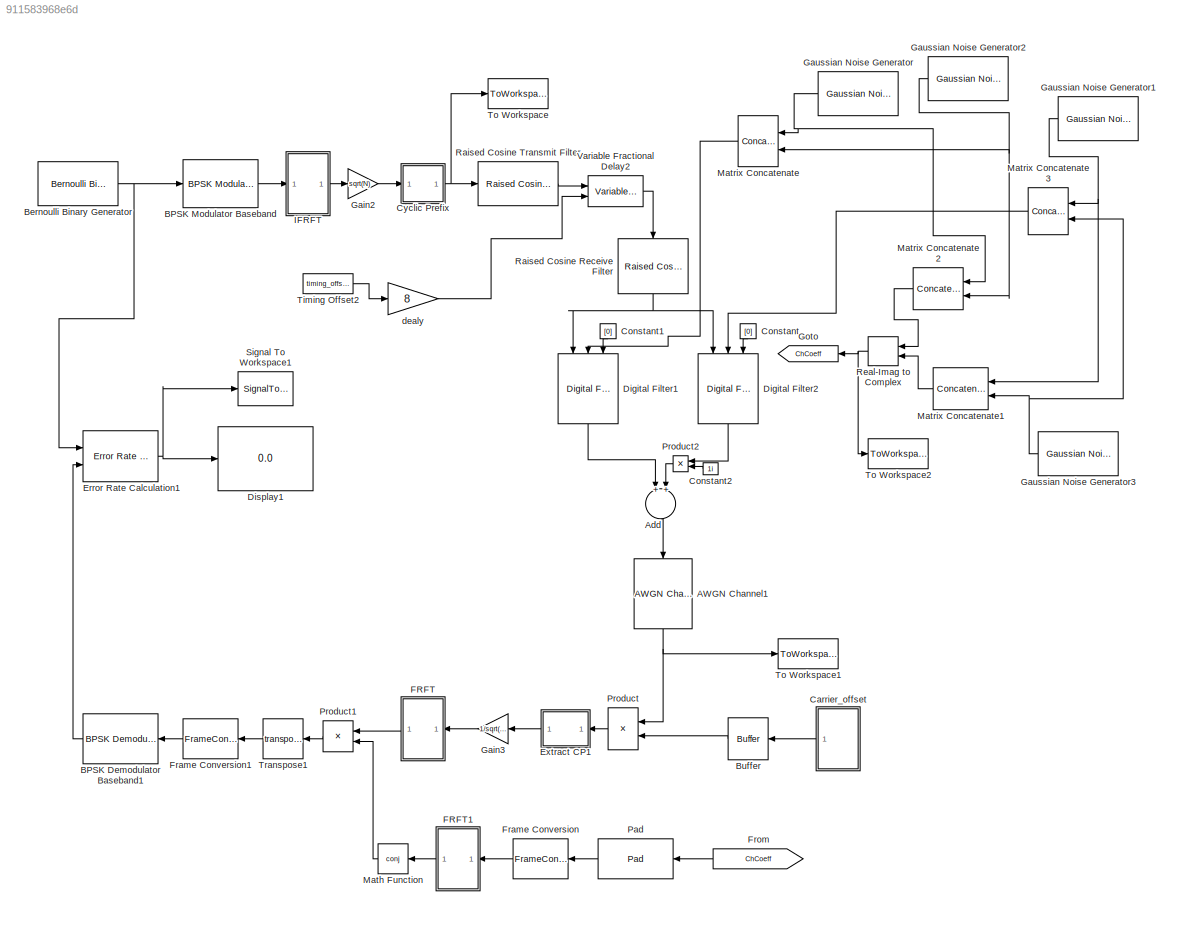
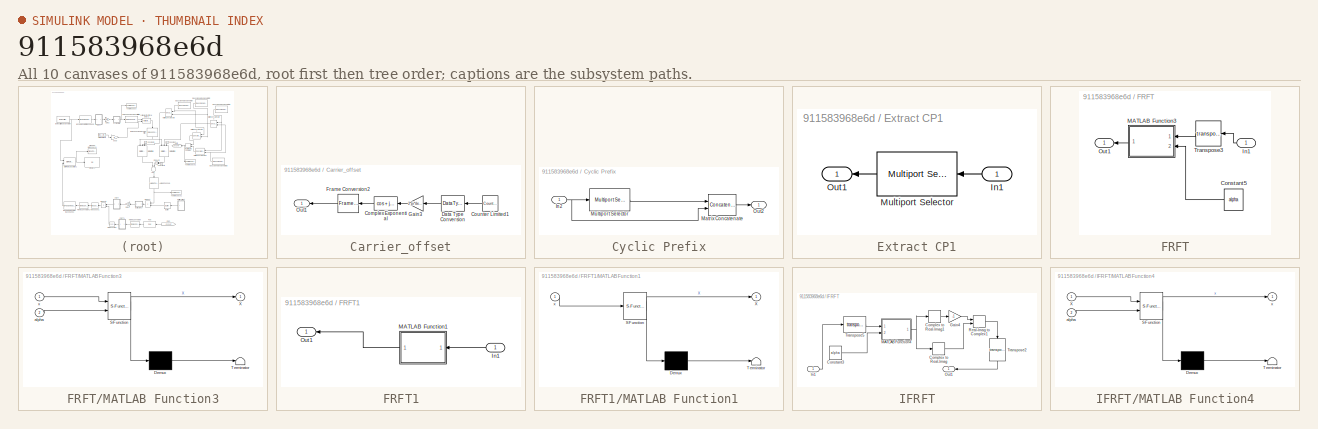
[diagram: thumbnail index - all 10 canvases of the model, root first then tree order]
MODEL slx_911583968e6d
KIND model
CONFIG AbsTol = auto
CONFIG FixedStep = auto
CONFIG MaxStep = auto
CONFIG MinStep = auto
CONFIG RelTol = 1e-3
CONFIG SampleTimeConstraint = Unconstrained
CONFIG Solver = VariableStepDiscrete
CONFIG SolverMode = Auto
CONFIG SolverName = VariableStepDiscrete
CONFIG StartTime = 0.0
CONFIG StopTime = inf
BLOCK [Reference] AWGN Channel1  REF=commchan3/AWGN
Channel
  EbNodB = 50
  EsNodB = 10
  InputProcessing = Columns as channels (frame based)
  Ports = [1, 1]
  Ps = 1
  SNRdB = SNR
  SourceBlock = commchan3/AWGN\nChannel
  SourceType = AWGN Channel
  Tsym = 1
  UserDataPersistent = on
  bitsPerSym = 1
  noiseMode = Signal to noise ratio  (SNR)
  seed = 67
  variance = 1
BLOCK [Sum] Add
  InputSameDT = off
  OutDataTypeStr = Inherit: Inherit via internal rule
  Ports = [2, 1]
  SaturateOnIntegerOverflow = off
BLOCK [Reference] BPSK Demodulator Baseband1  REF=commdigbbndpm3/BPSK
Demodulator
Baseband
  DecType = Hard decision
  Ph = 0
  Ports = [1, 1]
  SourceBlock = commdigbbndpm3/BPSK\nDemodulator\nBaseband
  SourceType = BPSK Demodulator Baseband
  VarSource = Dialog
  Variance = 1
  derotateFactorDTMode = Same word length as input
  derotateFactorWordLen = 16
  outDtype = Inherit via internal rule
BLOCK [Reference] BPSK Modulator Baseband  REF=commdigbbndpm3/BPSK
Modulator
Baseband
  Ph = 0
  Ports = [1, 1]
  SourceBlock = commdigbbndpm3/BPSK\nModulator\nBaseband
  SourceType = BPSK Modulator Baseband
  outDtype = double
  outFracLen = 15
  outFracLenMode = Best precision
  outUDDataType = sfix(16)
  outWordLen = 16
BLOCK [Reference] Bernoulli Binary Generator  REF=commrandsrc2/Bernoulli Binary
Generator
  P = .5
  Ports = [0, 1]
  SourceBlock = commrandsrc2/Bernoulli Binary\nGenerator
  SourceType = Bernoulli Binary Generator
  Ts = Ts/N
  frameBased = on
  orient = off
  outDataType = double
  sampPerFrame = N
  seed = 1361
BLOCK [Buffer] Buffer
  N = N+L
  TreatMby1Signals = One channel
BLOCK [SubSystem] Carrier_offset
  Ports = [0, 1]
  RequestExecContextInheritance = off
BLOCK [Trigonometry] Carrier_offset/Complex Exponential
  Operator = cos + jsin
  Ports = [1, 1]
BLOCK [Reference] Carrier_offset/Counter Limited1  REF=simulink/Sources/Counter
Limited
  Ports = [0, 1]
  SourceBlock = simulink/Sources/Counter\nLimited
  SourceType = Counter Limited
  tsamp = Ts/(N+L)
  uplimit = N+L
BLOCK [DataTypeConversion] Carrier_offset/Data Type Conversion
  RndMeth = Floor
  SaturateOnIntegerOverflow = off
BLOCK [FrameConversion] Carrier_offset/Frame Conversion2
  Ports = [1, 1]
BLOCK [Gain] Carrier_offset/Gain3
  Gain = 2*pi*del_f/N
  OutDataTypeStr = Inherit: Inherit via internal rule
  ParamDataTypeStr = Inherit: Inherit via internal rule
  SaturateOnIntegerOverflow = off
BLOCK [Outport] Carrier_offset/Out1
  IconDisplay = Port number
BLOCK [Constant] Constant
  FramePeriod = 1
  SamplingMode = Frame based
  Value = [0]
  VectorParams1D = off
BLOCK [Constant] Constant1
  FramePeriod = 1
  SamplingMode = Frame based
  Value = [0]
  VectorParams1D = off
BLOCK [Constant] Constant2
  Value = 1i
BLOCK [SubSystem] Cyclic Prefix
  Ports = [1, 1]
  RequestExecContextInheritance = off
BLOCK [Inport] Cyclic Prefix/In2
  IconDisplay = Port number
BLOCK [Concatenate] Cyclic Prefix/Matrix Concatenate
  Mode = Multidimensional array
  Ports = [2, 1]
BLOCK [Reference] Cyclic Prefix/Multiport Selector  REF=dspindex/Multiport
Selector
  Ports = [1, 1]
  SourceBlock = dspindex/Multiport\nSelector
  SourceType = Multiport Selector
  idxCellArray = { N-L+1:N }
  idxErrMode = Clip Index
  rowsOrCols = Rows
BLOCK [Outport] Cyclic Prefix/Out2
  IconDisplay = Port number
BLOCK [Reference] Digital Filter1  REF=dspobslib/Digital Filter
  AllPoleFiltStruct = Direct form
  BiQuadCoeffs = [1 0.3 0.4 1 0.1 0.2]
  CoeffSource = Input port(s)
  DenCoeffs = [1 1]
  FIRFiltStruct = Direct form
  FiltPerSampPopup = One filter per frame
  FilterSource = Input port(s)
  IC = 0
  ICden = 0
  ICnum = 0
  IIRFiltStruct = Direct form II transposed
  InputProcessing = Columns as channels (frame based)
  LatticeCoeffs = [0.2 0.4]
  LockScale = off
  NumCoeffs = randn
  Ports = [3, 1]
  ScaleValues = 1
  SourceBlock = dspobslib/Digital Filter
  SourceType = Digital Filter
  TypePopup = IIR (poles & zeros)
  UserDataPersistent = on
  accumFracLength = 30
  accumMode = Same as product output
  accumWordLength = 32
  additionalParams = off
  allowOverrides = on
  denIgnore = on
  dfiltObjectName = dfilt.dffir([1 2 1])
  firstCoeffFracLength = 15
  firstCoeffMode = Same word length as input
  firstCoeffWordLength = 16
  memoryFracLength = 15
  memoryMode = Same as accumulator
  memoryWordLength = 16
  multiplicandFracLength = 30
  multiplicandMode = Same as output
  multiplicandWordLength = 32
  outputFracLength = 15
  outputMode = Same as accumulator
  outputWordLength = 16
  overflowMode = off
  prodOutputFracLength = 30
  prodOutputMode = Same as input
  prodOutputWordLength = 32
  roundingMode = Floor
  scaleValueFracLength = 14
  secondCoeffFracLength = 15
  secondCoeffMode = Same as numerator
  secondCoeffWordLength = 16
  showAcc = off
  showCoeff = off
  showMem = off
  showMpy = off
  showOut = off
  stageIOMode = Same as input
  stageIOWordLength = 16
  stageInFracLength = 15
  stageOutFracLength = 15
  tapSumFracLength = 30
  tapSumMode = Same as input
  tapSumWordLength = 32
  thirdCoeffFracLength = 15
  thirdCoeffMode = Same as input
  thirdCoeffWordLength = 16
BLOCK [Reference] Digital Filter2  REF=dspobslib/Digital Filter
  AllPoleFiltStruct = Direct form
  BiQuadCoeffs = [1 0.3 0.4 1 0.1 0.2]
  CoeffSource = Input port(s)
  DenCoeffs = [1 1]
  FIRFiltStruct = Direct form
  FiltPerSampPopup = One filter per frame
  FilterSource = Input port(s)
  IC = 0
  ICden = 0
  ICnum = 0
  IIRFiltStruct = Direct form II transposed
  InputProcessing = Columns as channels (frame based)
  LatticeCoeffs = [0.2 0.4]
  LockScale = off
  NumCoeffs = randn
  Ports = [3, 1]
  ScaleValues = 1
  SourceBlock = dspobslib/Digital Filter
  SourceType = Digital Filter
  TypePopup = IIR (poles & zeros)
  UserDataPersistent = on
  accumFracLength = 30
  accumMode = Same as product output
  accumWordLength = 32
  additionalParams = off
  allowOverrides = on
  denIgnore = on
  dfiltObjectName = dfilt.dffir([1 2 1])
  firstCoeffFracLength = 15
  firstCoeffMode = Same word length as input
  firstCoeffWordLength = 16
  memoryFracLength = 15
  memoryMode = Same as accumulator
  memoryWordLength = 16
  multiplicandFracLength = 30
  multiplicandMode = Same as output
  multiplicandWordLength = 32
  outputFracLength = 15
  outputMode = Same as accumulator
  outputWordLength = 16
  overflowMode = off
  prodOutputFracLength = 30
  prodOutputMode = Same as input
  prodOutputWordLength = 32
  roundingMode = Floor
  scaleValueFracLength = 14
  secondCoeffFracLength = 15
  secondCoeffMode = Same as numerator
  secondCoeffWordLength = 16
  showAcc = off
  showCoeff = off
  showMem = off
  showMpy = off
  showOut = off
  stageIOMode = Same as input
  stageIOWordLength = 16
  stageInFracLength = 15
  stageOutFracLength = 15
  tapSumFracLength = 30
  tapSumMode = Same as input
  tapSumWordLength = 32
  thirdCoeffFracLength = 15
  thirdCoeffMode = Same as input
  thirdCoeffWordLength = 16
BLOCK [Display] Display1
  Decimation = 1
  Ports = [1]
BLOCK [Reference] Error Rate Calculation1  REF=commsink2/Error Rate
Calculation
  N = N
  PMode = Port
  Ports = [2, 1]
  RsMode2 = off
  SourceBlock = commsink2/Error Rate\nCalculation
  SourceType = Error Rate Calculation
  WsName = ErrorVec
  cp_mode = Entire frame
  maxBits = maxNumBits
  numErr = maxNumErrs
  st_delay = N
  stop = on
  subframe = []
BLOCK [SubSystem] Extract CP1
  Ports = [1, 1]
  RequestExecContextInheritance = off
BLOCK [Inport] Extract CP1/In1
  IconDisplay = Port number
BLOCK [Reference] Extract CP1/Multiport Selector  REF=dspindex/Multiport
Selector
  Ports = [1, 1]
  SourceBlock = dspindex/Multiport\nSelector
  SourceType = Multiport Selector
  idxCellArray = { (L+1):(N+L) }
  idxErrMode = Clip Index
  rowsOrCols = Rows
BLOCK [Outport] Extract CP1/Out1
  IconDisplay = Port number
BLOCK [SubSystem] FRFT
  Ports = [1, 1]
  RequestExecContextInheritance = off
BLOCK [Constant] FRFT/Constant5
  SamplingMode = Frame based
  Value = alpha
  VectorParams1D = off
BLOCK [Inport] FRFT/In1
  IconDisplay = Port number
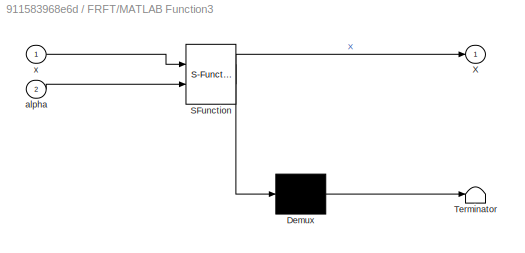
BLOCK [SubSystem] FRFT/MATLAB Function3
  ErrorFcn = Stateflow.Translate.translate
  PermitHierarchicalResolution = ExplicitOnly
  Ports = [2, 1]
  RequestExecContextInheritance = off
  SFBlockType = MATLAB Function
  TreatAsAtomicUnit = on
BLOCK [Demux] FRFT/MATLAB Function3/ Demux 
  Outputs = 1
  Ports = [1, 1]
BLOCK [S-Function] FRFT/MATLAB Function3/ SFunction 
  EnableBusSupport = on
  FunctionName = sf_sfun
  PortCounts = [2 2]
  Ports = [2, 2]
  Tag = Stateflow S-Function BPSK_FS_CFO_STO_finial 3
BLOCK [Terminator] FRFT/MATLAB Function3/ Terminator 
BLOCK [Outport] FRFT/MATLAB Function3/X
  IconDisplay = Port number
BLOCK [Inport] FRFT/MATLAB Function3/alpha
  IconDisplay = Port number
  Port = 2
BLOCK [Inport] FRFT/MATLAB Function3/x
  IconDisplay = Port number
BLOCK [Outport] FRFT/Out1
  IconDisplay = Port number
BLOCK [Math] FRFT/Transpose3
  Operator = transpose
  Ports = [1, 1]
BLOCK [SubSystem] FRFT1
  Ports = [1, 1]
  RequestExecContextInheritance = off
BLOCK [Inport] FRFT1/In1
  IconDisplay = Port number
BLOCK [SubSystem] FRFT1/MATLAB Function1
  ErrorFcn = Stateflow.Translate.translate
  PermitHierarchicalResolution = ExplicitOnly
  Ports = [1, 1]
  RequestExecContextInheritance = off
  SFBlockType = MATLAB Function
  TreatAsAtomicUnit = on
BLOCK [Demux] FRFT1/MATLAB Function1/ Demux 
  Outputs = 1
  Ports = [1, 1]
BLOCK [S-Function] FRFT1/MATLAB Function1/ SFunction 
  EnableBusSupport = on
  FunctionName = sf_sfun
  PortCounts = [1 2]
  Ports = [1, 2]
  Tag = Stateflow S-Function BPSK_FS_CFO_STO_finial 1
BLOCK [Terminator] FRFT1/MATLAB Function1/ Terminator 
BLOCK [Outport] FRFT1/MATLAB Function1/X
  IconDisplay = Port number
BLOCK [Inport] FRFT1/MATLAB Function1/x
  IconDisplay = Port number
BLOCK [Outport] FRFT1/Out1
  IconDisplay = Port number
BLOCK [FrameConversion] Frame Conversion
  OutFrame = Sample-based
  Ports = [1, 1]
BLOCK [FrameConversion] Frame Conversion1
  Ports = [1, 1]
BLOCK [From] From
  GotoTag = ChCoeff
BLOCK [Gain] Gain2
  Gain = sqrt(N)
  OutDataTypeStr = double
  ParamDataTypeStr = Inherit: Inherit via internal rule
  SaturateOnIntegerOverflow = off
BLOCK [Gain] Gain3
  Gain = 1/sqrt(N)
  OutDataTypeStr = Inherit: Inherit via internal rule
  ParamDataTypeStr = Inherit: Inherit via internal rule
  SaturateOnIntegerOverflow = off
BLOCK [Reference] Gaussian Noise Generator  REF=commnoisgen2/Gaussian Noise
Generator
  Ports = [0, 1]
  SourceBlock = commnoisgen2/Gaussian Noise\nGenerator
  SourceType = Gaussian Noise Generator
  Ts = 1
  d = 1/4
  frameBased = on
  m = 0
  orient = off
  outDataType = double
  s = 1772
  sampPerFrame = 1
BLOCK [Reference] Gaussian Noise Generator1  REF=commnoisgen2/Gaussian Noise
Generator
  Ports = [0, 1]
  SourceBlock = commnoisgen2/Gaussian Noise\nGenerator
  SourceType = Gaussian Noise Generator
  Ts = 1
  d = 1/4
  frameBased = on
  m = 0
  orient = off
  outDataType = double
  s = 12313
  sampPerFrame = 1
BLOCK [Reference] Gaussian Noise Generator2  REF=commnoisgen2/Gaussian Noise
Generator
  Ports = [0, 1]
  SourceBlock = commnoisgen2/Gaussian Noise\nGenerator
  SourceType = Gaussian Noise Generator
  Ts = 1
  d = 1/4
  frameBased = on
  m = 0
  orient = off
  outDataType = double
  s = 14123
  sampPerFrame = 1
BLOCK [Reference] Gaussian Noise Generator3  REF=commnoisgen2/Gaussian Noise
Generator
  Ports = [0, 1]
  SourceBlock = commnoisgen2/Gaussian Noise\nGenerator
  SourceType = Gaussian Noise Generator
  Ts = 1
  d = 1/4
  frameBased = on
  m = 0
  orient = off
  outDataType = double
  s = 6632
  sampPerFrame = 1
BLOCK [Goto] Goto
  GotoTag = ChCoeff
BLOCK [SubSystem] IFRFT
  Ports = [1, 1]
  RequestExecContextInheritance = off
BLOCK [ComplexToRealImag] IFRFT/Complex to Real-Imag
  Output = Real
  Ports = [1, 1]
BLOCK [ComplexToRealImag] IFRFT/Complex to Real-Imag1
  Output = Imag
  Ports = [1, 1]
BLOCK [Constant] IFRFT/Constant3
  SamplingMode = Frame based
  Value = alpha
  VectorParams1D = off
BLOCK [Gain] IFRFT/Gain4
  Gain = -1
  OutDataTypeStr = Inherit: Inherit via internal rule
  ParamDataTypeStr = Inherit: Inherit via internal rule
  SaturateOnIntegerOverflow = off
BLOCK [Inport] IFRFT/In1
  IconDisplay = Port number
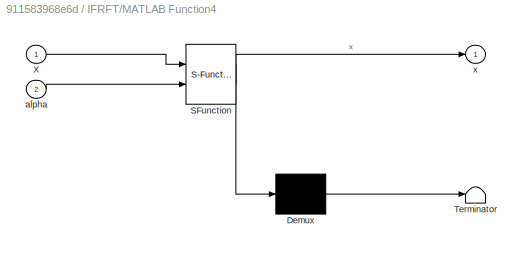
BLOCK [SubSystem] IFRFT/MATLAB Function4
  ErrorFcn = Stateflow.Translate.translate
  PermitHierarchicalResolution = ExplicitOnly
  Ports = [2, 1]
  RequestExecContextInheritance = off
  SFBlockType = MATLAB Function
  TreatAsAtomicUnit = on
BLOCK [Demux] IFRFT/MATLAB Function4/ Demux 
  Outputs = 1
  Ports = [1, 1]
BLOCK [S-Function] IFRFT/MATLAB Function4/ SFunction 
  EnableBusSupport = on
  FunctionName = sf_sfun
  PortCounts = [2 2]
  Ports = [2, 2]
  Tag = Stateflow S-Function BPSK_FS_CFO_STO_finial 4
BLOCK [Terminator] IFRFT/MATLAB Function4/ Terminator 
BLOCK [Inport] IFRFT/MATLAB Function4/X
  IconDisplay = Port number
BLOCK [Inport] IFRFT/MATLAB Function4/alpha
  IconDisplay = Port number
  Port = 2
BLOCK [Outport] IFRFT/MATLAB Function4/x
  IconDisplay = Port number
BLOCK [Outport] IFRFT/Out1
  IconDisplay = Port number
BLOCK [RealImagToComplex] IFRFT/Real-Imag to Complex1
  Ports = [2, 1]
BLOCK [Math] IFRFT/Transpose2
  Operator = transpose
  Ports = [1, 1]
BLOCK [Math] IFRFT/Transpose5
  Operator = transpose
  Ports = [1, 1]
BLOCK [Math] Math Function
  Operator = conj
  Ports = [1, 1]
BLOCK [Concatenate] Matrix Concatenate
  Mode = Multidimensional array
  Ports = [2, 1]
BLOCK [Concatenate] Matrix Concatenate1
  ConcatenateDimension = 2
  Mode = Multidimensional array
  Ports = [2, 1]
BLOCK [Concatenate] Matrix Concatenate2
  ConcatenateDimension = 2
  Mode = Multidimensional array
  Ports = [2, 1]
BLOCK [Concatenate] Matrix Concatenate3
  Mode = Multidimensional array
  Ports = [2, 1]
BLOCK [Reference] Pad  REF=dspsigops/Pad
  LockScale = off
  Ports = [1, 1]
  SourceBlock = dspsigops/Pad
  SourceType = Pad
  accumFracLength = 0
  accumMode = Same as input
  accumWordLength = 0
  dimsToPad = 1
  isVarDimsMode = off
  numOutCols = N
  numOutRows = 8
  outSize = 1
  outSizeMode = User-specified
  outputFracLength = 0
  outputMode = Same as input
  outputWordLength = 0
  overflowMode = off
  padAlong = Rows
  padBeginning = 0
  padEnd = 0
  padNumOutColsSpecMethod = User-specified
  padNumOutRowsSpecMethod = User-specified
  padSigAt = End
  padVal = 0
  roundingMode = Floor
  spec = Output size
  truncOrWrapMode = Truncate
  trunc_flag = None
  valSrc = Specify via dialog
  wrap_flag = None
BLOCK [Product] Product
  InputSameDT = off
  OutDataTypeStr = Inherit: Inherit via internal rule
  Ports = [2, 1]
  RndMeth = Floor
  SaturateOnIntegerOverflow = off
BLOCK [Product] Product1
  InputSameDT = off
  OutDataTypeStr = Inherit: Inherit via internal rule
  Ports = [2, 1]
  RndMeth = Floor
  SaturateOnIntegerOverflow = off
BLOCK [Product] Product2
  InputSameDT = off
  OutDataTypeStr = Inherit: Inherit via internal rule
  Ports = [2, 1]
  RndMeth = Floor
  SaturateOnIntegerOverflow = off
BLOCK [Reference] Raised Cosine Receive Filter  REF=commfilt2/Raised Cosine
Receive Filter
  D = (N+L)/2
  InputProcessing = Columns as channels (frame based)
  LockScale = off
  N = 10
  Ports = [1, 1]
  R = 0.5
  SourceBlock = commfilt2/Raised Cosine\nReceive Filter
  SourceType = Raised Cosine Receive Filter
  UserDataPersistent = on
  accumFracLength = 30
  accumMode = Same as product output
  accumWordLength = 32
  checkCoeff = on
  checkGain = Normalized
  coeffFracLength = 15
  coeffMode = Same word length as input
  coeffWordLength = 16
  currentFiltSpan = N+L
  downFactor = 10
  downOffset = 0
  filtSpan = N+L
  filtType = Square root
  filterGain = 1
  framing = Enforce single-rate processing
  launchFVT = on
  outputFracLength = 15
  outputMode = Same as accumulator
  outputWordLength = 16
  overflowMode = off
  prodOutputFracLength = 30
  prodOutputMode = Same as input
  prodOutputWordLength = 32
  rateMode = Downsampling
  roundingMode = Floor
  sampMode = Mute
  saveAsFlag = 0
  variableName = rcRxFilt
BLOCK [Reference] Raised Cosine Transmit Filter  REF=commfilt2/Raised Cosine
Transmit Filter
  D = (N+L)/2
  InputProcessing = Columns as channels (frame based)
  LockScale = off
  N = 10
  Ports = [1, 1]
  R = 0.5
  SourceBlock = commfilt2/Raised Cosine\nTransmit Filter
  SourceType = Raised Cosine Transmit Filter
  UserDataPersistent = on
  accumFracLength = 30
  accumMode = Inherit via internal rule
  accumWordLength = 32
  checkCoeff = on
  checkGain = Normalized
  coeffFracLength = 15
  coeffMode = Same word length as input
  coeffWordLength = 16
  currentFiltSpan = N+L
  filtSpan = N+L
  filtType = Square root
  filterGain = 1
  framing = Enforce single-rate processing
  launchFVT = on
  outputFracLength = 15
  outputMode = Same as accumulator
  outputWordLength = 16
  overflowMode = off
  prodOutputFracLength = 30
  prodOutputMode = Inherit via internal rule
  prodOutputWordLength = 32
  roundingMode = Floor
  sampMode = Mute
  saveAsFlag = 0
  variableName = rcTxFilt
BLOCK [RealImagToComplex] Real-Imag to Complex
  Ports = [2, 1]
BLOCK [SignalToWorkspace] Signal To Workspace1
  CopyFcn = dspblkcopystw(gcbh);
  MaxDataPoints = 1
  Ports = [1]
  VariableName = SER1
BLOCK [Constant] Timing Offset2
  Value = timing_offset
BLOCK [ToWorkspace] To Workspace
  FixptAsFi = on
  MaxDataPoints = inf
  Ports = [1]
  SampleTime = -1
  Save2DSignal = 3-D array (concatenate along third dimension)
  SaveFormat = Timeseries
  VariableName = simout
BLOCK [ToWorkspace] To Workspace1
  FixptAsFi = on
  MaxDataPoints = inf
  Ports = [1]
  SampleTime = -1
  Save2DSignal = 3-D array (concatenate along third dimension)
  SaveFormat = Timeseries
  VariableName = simout1
BLOCK [ToWorkspace] To Workspace2
  FixptAsFi = on
  MaxDataPoints = inf
  Ports = [1]
  SampleTime = -1
  Save2DSignal = 3-D array (concatenate along third dimension)
  SaveFormat = Timeseries
  VariableName = simout2
BLOCK [Math] Transpose1
  Operator = transpose
  Ports = [1, 1]
BLOCK [Reference] Variable Fractional Delay2  REF=dspsigops/Variable
Fractional Delay
  FarrowL = 4
  InputProcessing = Columns as channels (frame based)
  L = 4
  LockScale = off
  Ports = [2, 1]
  R = 10
  SourceBlock = dspsigops/Variable\nFractional Delay
  SourceType = Variable Fractional Delay
  UserDataPersistent = on
  accumFracLength = 10
  accumMode = Same as product output
  accumWordLength = 32
  alpha = 1
  dmax = 10
  fallbackFIR = Clip to the minimum value necessary for centered kernel
  fallbackFarrow = Clip to the minimum value necessary for centered kernel
  firstCoeffFracLength = 0
  firstCoeffMode = Same word length as input
  firstCoeffWordLength = 32
  ic = 0
  interProdFracLength = 10
  interProdMode = Same as first input
  interProdWordLength = 32
  memoryFracLength = 10
  memoryMode = Same as first input
  memoryWordLength = 32
  mode = OBSOLETE
  modeActive = Linear
  noDFT = off
  outputFracLength = 10
  outputMode = Same as accumulator
  outputWordLength = 32
  overflowMode = off
  prodOutputFracLength = 10
  prodOutputMode = Same as first input
  prodOutputWordLength = 32
  roundingMode = Zero
  secondCoeffFracLength = 10
  secondCoeffMode = Same as first input
  secondCoeffWordLength = 32
BLOCK [Gain] dealy 
  Gain = 8
NET AWGN Channel1:1 -> Product:1, To Workspace1:1
LINE Add:1 -> AWGN Channel1:1
LINE BPSK Demodulator Baseband1:1 -> Error Rate Calculation1:2
LINE BPSK Modulator Baseband:1 -> IFRFT:1
NET Bernoulli Binary Generator:1 -> BPSK Modulator Baseband:1, Error Rate Calculation1:1
LINE Buffer:1 -> Product:2
LINE Carrier_offset/Complex Exponential:1 -> Carrier_offset/Frame Conversion2:1
LINE Carrier_offset/Counter Limited1:1 -> Carrier_offset/Data Type Conversion:1
LINE Carrier_offset/Data Type Conversion:1 -> Carrier_offset/Gain3:1
LINE Carrier_offset/Frame Conversion2:1 -> Carrier_offset/Out1:1
LINE Carrier_offset/Gain3:1 -> Carrier_offset/Complex Exponential:1
LINE Carrier_offset:1 -> Buffer:1
LINE Constant1:1 -> Digital Filter1:3
LINE Constant2:1 -> Product2:2
LINE Constant:1 -> Digital Filter2:3
NET Cyclic Prefix/In2:1 -> Cyclic Prefix/Matrix Concatenate:2, Cyclic Prefix/Multiport Selector:1
LINE Cyclic Prefix/Matrix Concatenate:1 -> Cyclic Prefix/Out2:1
LINE Cyclic Prefix/Multiport Selector:1 -> Cyclic Prefix/Matrix Concatenate:1
NET Cyclic Prefix:1 -> Raised Cosine Transmit Filter:1, To Workspace:1
LINE Digital Filter1:1 -> Add:1
LINE Digital Filter2:1 -> Product2:1
NET Error Rate Calculation1:1 -> Display1:1, Signal To Workspace1:1
LINE Extract CP1/In1:1 -> Extract CP1/Multiport Selector:1
LINE Extract CP1/Multiport Selector:1 -> Extract CP1/Out1:1
LINE Extract CP1:1 -> Gain3:1
LINE FRFT/Constant5:1 -> FRFT/MATLAB Function3:2
LINE FRFT/In1:1 -> FRFT/Transpose3:1
LINE FRFT/MATLAB Function3:1 -> FRFT/Out1:1
LINE FRFT/Transpose3:1 -> FRFT/MATLAB Function3:1
LINE FRFT1/In1:1 -> FRFT1/MATLAB Function1:1
LINE FRFT1/MATLAB Function1:1 -> FRFT1/Out1:1
LINE FRFT1:1 -> Math Function:1
LINE FRFT:1 -> Product1:1
LINE Frame Conversion1:1 -> BPSK Demodulator Baseband1:1
LINE Frame Conversion:1 -> FRFT1:1
LINE From:1 -> Pad:1
LINE Gain2:1 -> Cyclic Prefix:1
LINE Gain3:1 -> FRFT:1
NET Gaussian Noise Generator1:1 -> Matrix Concatenate1:1, Matrix Concatenate3:1
NET Gaussian Noise Generator2:1 -> Matrix Concatenate2:2, Matrix Concatenate:2
NET Gaussian Noise Generator3:1 -> Matrix Concatenate1:2, Matrix Concatenate3:2
NET Gaussian Noise Generator:1 -> Matrix Concatenate2:1, Matrix Concatenate:1
LINE IFRFT/Complex to Real-Imag1:1 -> IFRFT/Gain4:1
LINE IFRFT/Complex to Real-Imag:1 -> IFRFT/Real-Imag to Complex1:2
LINE IFRFT/Constant3:1 -> IFRFT/MATLAB Function4:2
LINE IFRFT/Gain4:1 -> IFRFT/Real-Imag to Complex1:1
LINE IFRFT/In1:1 -> IFRFT/Transpose5:1
NET IFRFT/MATLAB Function4:1 -> IFRFT/Complex to Real-Imag1:1, IFRFT/Complex to Real-Imag:1
LINE IFRFT/Real-Imag to Complex1:1 -> IFRFT/Transpose2:1
LINE IFRFT/Transpose2:1 -> IFRFT/Out1:1
LINE IFRFT/Transpose5:1 -> IFRFT/MATLAB Function4:1
LINE IFRFT:1 -> Gain2:1
LINE Math Function:1 -> Product1:2
LINE Matrix Concatenate1:1 -> Real-Imag to Complex:2
LINE Matrix Concatenate2:1 -> Real-Imag to Complex:1
LINE Matrix Concatenate3:1 -> Digital Filter2:2
LINE Matrix Concatenate:1 -> Digital Filter1:2
LINE Pad:1 -> Frame Conversion:1
LINE Product1:1 -> Transpose1:1
LINE Product2:1 -> Add:2
LINE Product:1 -> Extract CP1:1
NET Raised Cosine Receive Filter:1 -> Digital Filter1:1, Digital Filter2:1
LINE Raised Cosine Transmit Filter:1 -> Variable Fractional Delay2:1
NET Real-Imag to Complex:1 -> Goto:1, To Workspace2:1
LINE Timing Offset2:1 -> dealy :1
LINE Transpose1:1 -> Frame Conversion1:1
LINE Variable Fractional Delay2:1 -> Raised Cosine Receive Filter:1
LINE dealy :1 -> Variable Fractional Delay2:2
note: NET lines group one-source signal fan-out (src -> all destinations, sorted); 1:1 wires keep LINE
CHART FRFT1/MATLAB Function1 states=1 transitions=1
  STATE_LABEL 'eML_blk_kernel()'
  STATE_LABEL "SCRIPT:\nfunction X =atul_frft(x)\nN=length(x);\n% for alpha= 1.5:.001: 1.6\nalpha =pi/2;\n% alpha = 1.592;\na=alpha*2/pi;\nA = sqrt((sin(alpha) - 1i*cos(alpha))/N);\ndelta_t=1;\ndelta_u =( 2*pi*abs(sin(alpha)) ) /(N);\nn=0:1:N-1;\nk=n;\nkernel_frft = A*(exp(0.5*1i*cot(alpha)*(n.^2)'*(delta_t^2)) * exp(0.5*1i*cot(alpha)*(k.^2)*(delta_u^2)).* exp(-1i*2*pi*(n'*k)/N));\n X1 = x* kernel_frft;\n X=X1*sqrt(length(x))...<+11ch>"
CHART FRFT/MATLAB Function3 states=1 transitions=1
  STATE_LABEL 'eML_blk_kernel()'
  STATE_LABEL "SCRIPT:\nfunction X =atul_frft(x,alpha)\nN=length(x);\na=alpha*2/pi;\nA = sqrt((sin(alpha) - 1i*cos(alpha))/N);\ndelta_t=1;\ndelta_u =( 2*pi*abs(sin(alpha)) ) /(N);\nn=0:1:N-1;\nk=n;\nkernel_frft = A*(exp(0.5*1i*cot(alpha)*(n.^2)'*(delta_t^2)) * exp(0.5*1i*cot(alpha)*(k.^2)*(delta_u^2)).* exp(-1i*2*pi*(n'*k)/N));\n X1 = x* kernel_frft;\n X=X1*sqrt(length(x));\nend"
CHART IFRFT/MATLAB Function4 states=1 transitions=1
  STATE_LABEL 'eML_blk_kernel()'
  STATE_LABEL "SCRIPT:\nfunction x = atul_ifrft(X,alpha)\nN=length(X);\na=alpha*2/pi;\nA = sqrt((sin(alpha) - 1i*cos(alpha))/N);\ndelta_t=1;\ndelta_u = ( 2*pi*abs(sin(alpha)) ) /(N);\nn=0:1:N-1;\nk=n;\nkernel_ifrft = -1i*A*(exp(0.5*1i*cot(alpha)*(n.^2)'*(delta_u^2)) * exp(0.5*1i*cot(alpha)*(k.^2)*(delta_t^2)).* exp(1i*2*pi*(n'*k)/N));\nx = X * kernel_ifrft;\nx=x/sqrt(length(X));\nend\n"
